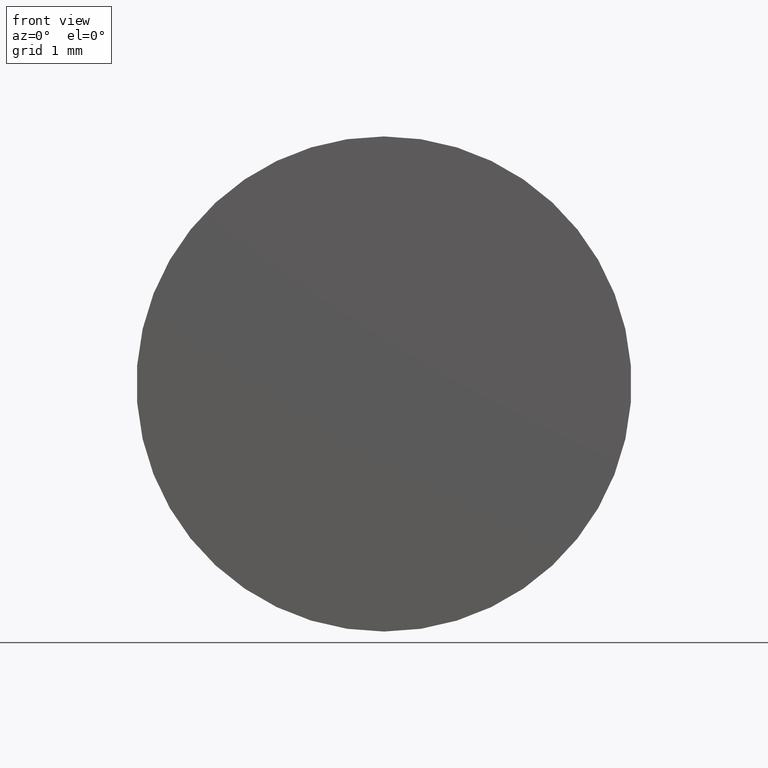
[diagram: clean part render]
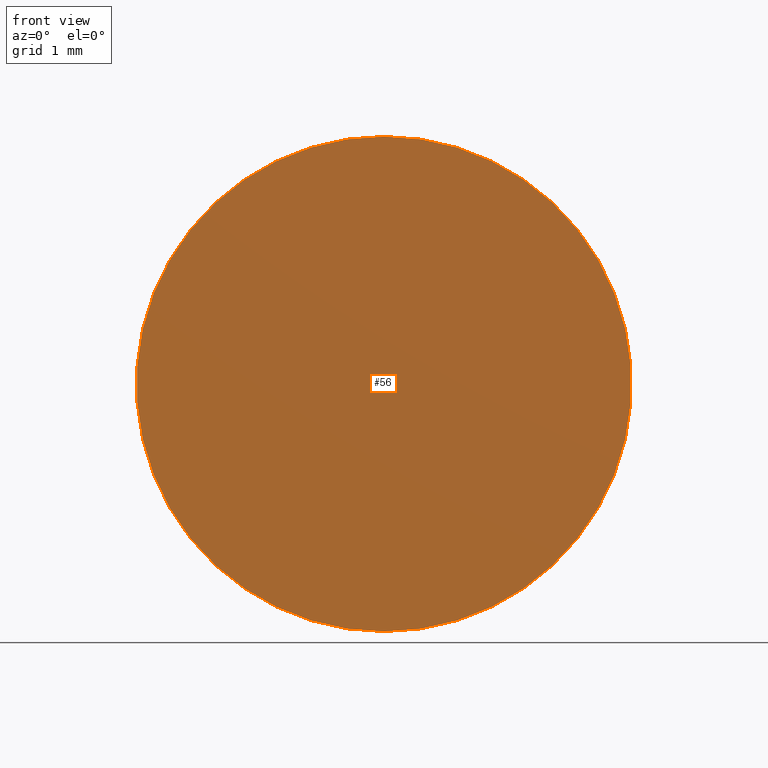
[diagram: same view with one face highlighted and labeled with its STEP entity id]
A machine part, front view. The second image highlights one B-rep face of the part: STEP entity #56.
In plain terms, the highlighted planar face has unit normal (0, -1, 0).
Its self-contained STEP definition (entity closure, byte-faithful):
#32 = FACE_OUTER_BOUND ( 'NONE', #179, .T. ) ;
#46 = CARTESIAN_POINT ( 'NONE',  ( 0.000000000000000000, -4.336808689942017736E-16, 0.000000000000000000 ) ) ;
#47 = AXIS2_PLACEMENT_3D ( 'NONE', #46, #138, #105 ) ;
#49 = DIRECTION ( 'NONE',  ( -0.000000000000000000, 1.000000000000000000, -0.000000000000000000 ) ) ;
#50 = DIRECTION ( 'NONE',  ( 0.000000000000000000, -0.000000000000000000, -1.000000000000000000 ) ) ;
#51 = CARTESIAN_POINT ( 'NONE',  ( 3.673940397442059868E-16, -4.336808689942017736E-16, -3.000000000000000000 ) ) ;
#56 = ADVANCED_FACE ( 'NONE', ( #32 ), #131, .T. ) ;
#61 = ORIENTED_EDGE ( 'NONE', *, *, #118, .F. ) ;
#64 = VERTEX_POINT ( 'NONE', #51 ) ;
#66 = CARTESIAN_POINT ( 'NONE',  ( 0.000000000000000000, -4.336808689942017736E-16, 0.000000000000000000 ) ) ;
#87 = AXIS2_PLACEMENT_3D ( 'NONE', #66, #49, #165 ) ;
#88 = VERTEX_POINT ( 'NONE', #120 ) ;
#105 = DIRECTION ( 'NONE',  ( 0.000000000000000000, 0.000000000000000000, 1.000000000000000000 ) ) ;
#118 = EDGE_CURVE ( 'NONE', #64, #88, #119, .T. ) ;
#119 = CIRCLE ( 'NONE', #47, 3.000000000000000000 ) ;
#120 = CARTESIAN_POINT ( 'NONE',  ( 0.000000000000000000, -4.336808689942017736E-16, 3.000000000000000000 ) ) ;
#131 = PLANE ( 'NONE',  #180 ) ;
#138 = DIRECTION ( 'NONE',  ( -0.000000000000000000, 1.000000000000000000, -0.000000000000000000 ) ) ;
#147 = CARTESIAN_POINT ( 'NONE',  ( 0.000000000000000000, -1.836970198721029688E-16, 0.000000000000000000 ) ) ;
#149 = DIRECTION ( 'NONE',  ( 0.000000000000000000, -1.000000000000000000, 0.000000000000000000 ) ) ;
#165 = DIRECTION ( 'NONE',  ( 0.000000000000000000, 0.000000000000000000, 1.000000000000000000 ) ) ;
#173 = CIRCLE ( 'NONE', #87, 3.000000000000000000 ) ;
#179 = EDGE_LOOP ( 'NONE', ( #196, #61 ) ) ;
#180 = AXIS2_PLACEMENT_3D ( 'NONE', #147, #149, #50 ) ;
#181 = EDGE_CURVE ( 'NONE', #88, #64, #173, .T. ) ;
#196 = ORIENTED_EDGE ( 'NONE', *, *, #181, .F. ) ;